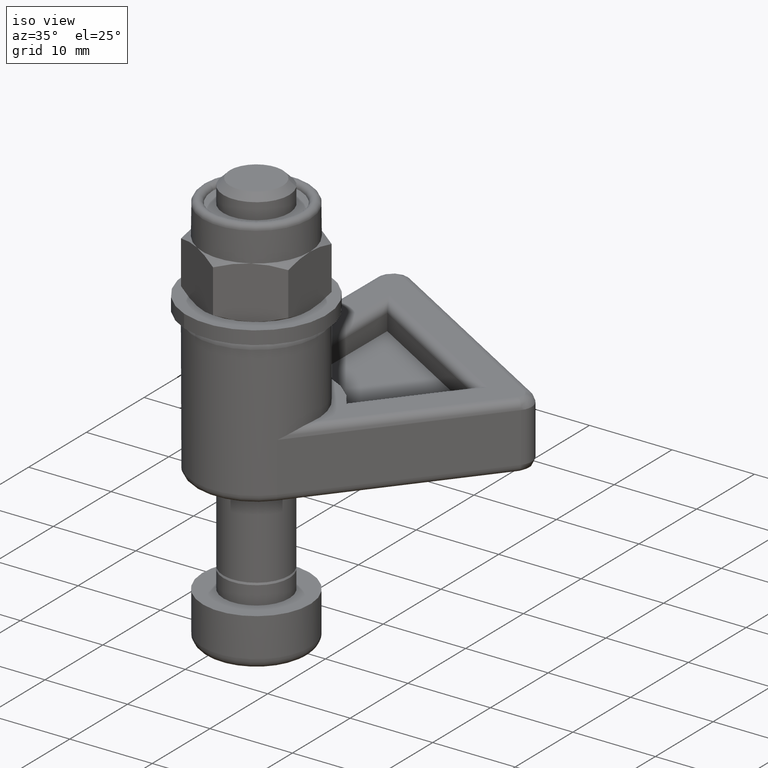
[diagram: clean part render]
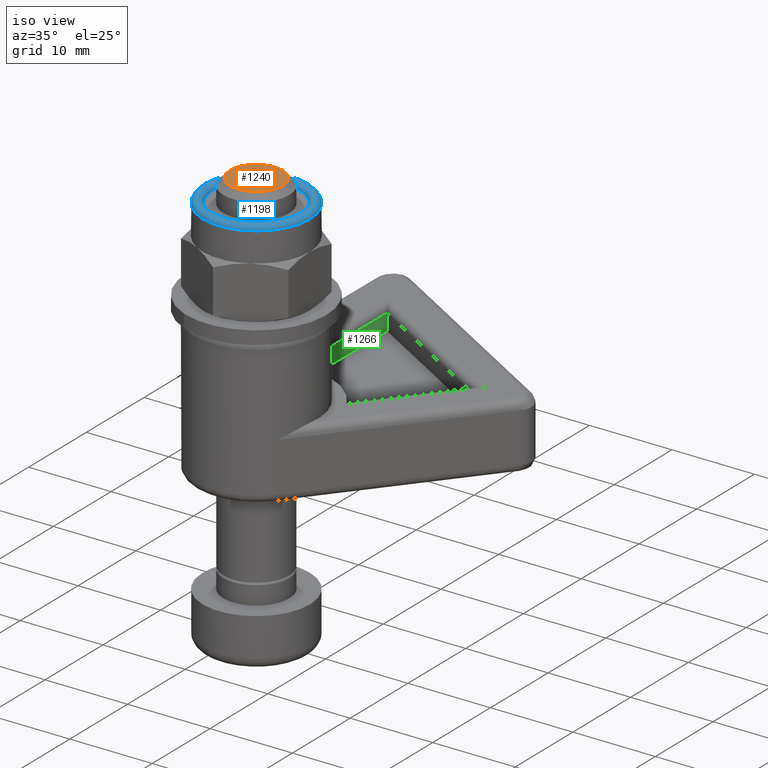
[diagram: same view with three faces highlighted in distinct colors, each labeled with its STEP entity id]
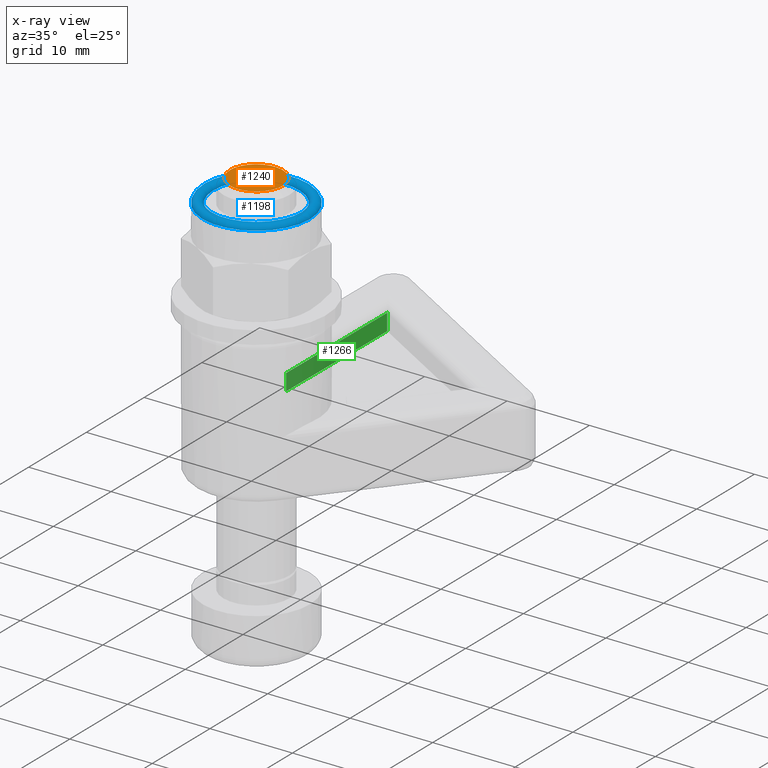
[diagram: x-ray of the same camera — body ghosted, the three highlighted faces saturated]
A machine part, iso view with three faces highlighted in distinct colors.
The next image is the same camera in x-ray (body ghosted, the three faces saturated) — at least one of them is partly hidden behind the body in this view.
Their STEP definitions:

[orange] entity #1240 — the highlighted planar face has unit normal (-0, -0, 1).
#307=FACE_OUTER_BOUND('',#392,.T.);
#392=EDGE_LOOP('',(#1008,#1009));
#471=CIRCLE('',#1489,3.2);
#472=CIRCLE('',#1490,3.2);
#572=VERTEX_POINT('',#2226);
#573=VERTEX_POINT('',#2227);
#722=EDGE_CURVE('',#572,#573,#471,.T.);
#723=EDGE_CURVE('',#573,#572,#472,.T.);
#1008=ORIENTED_EDGE('',*,*,#722,.T.);
#1009=ORIENTED_EDGE('',*,*,#723,.T.);
#1176=PLANE('',#1491);
#1240=ADVANCED_FACE('',(#307),#1176,.T.);
#1489=AXIS2_PLACEMENT_3D('',#2228,#1771,#1772);
#1490=AXIS2_PLACEMENT_3D('',#2229,#1773,#1774);
#1491=AXIS2_PLACEMENT_3D('',#2231,#1776,#1777);
#1771=DIRECTION('center_axis',(1.,1.06036163100756E-33,0.));
#1772=DIRECTION('ref_axis',(0.,1.,0.));
#1773=DIRECTION('center_axis',(1.,1.06036163100756E-33,0.));
#1774=DIRECTION('ref_axis',(0.,1.,0.));
#1776=DIRECTION('center_axis',(1.,1.06036163100756E-33,0.));
#1777=DIRECTION('ref_axis',(0.,0.,-1.));
#2226=CARTESIAN_POINT('',(51.,3.2,0.));
#2227=CARTESIAN_POINT('',(51.,-3.2,-3.91886975727153E-16));
#2228=CARTESIAN_POINT('Origin',(51.,4.93068158418513E-32,0.));
#2229=CARTESIAN_POINT('Origin',(51.,4.93068158418513E-32,0.));
#2231=CARTESIAN_POINT('Origin',(51.,1.6,0.));

[blue] entity #1198 — the highlighted toroidal blend (fillet) surface has major radius 5.875 mm and minor (blend) radius 0.625 mm.
#95=TOROIDAL_SURFACE('',#1407,5.87499999999996,0.625);
#265=FACE_OUTER_BOUND('',#344,.T.);
#344=EDGE_LOOP('',(#808,#809,#810,#811,#812));
#431=CIRCLE('',#1405,5.25);
#432=CIRCLE('',#1406,5.25);
#433=CIRCLE('',#1408,0.625);
#434=CIRCLE('',#1409,6.49999999999996);
#508=VERTEX_POINT('',#1958);
#509=VERTEX_POINT('',#1959);
#510=VERTEX_POINT('',#1963);
#624=EDGE_CURVE('',#508,#509,#431,.T.);
#625=EDGE_CURVE('',#509,#508,#432,.T.);
#626=EDGE_CURVE('',#509,#510,#433,.T.);
#627=EDGE_CURVE('',#510,#510,#434,.T.);
#808=ORIENTED_EDGE('',*,*,#624,.T.);
#809=ORIENTED_EDGE('',*,*,#626,.T.);
#810=ORIENTED_EDGE('',*,*,#627,.T.);
#811=ORIENTED_EDGE('',*,*,#626,.F.);
#812=ORIENTED_EDGE('',*,*,#625,.T.);
#1198=ADVANCED_FACE('',(#265),#95,.T.);
#1405=AXIS2_PLACEMENT_3D('',#1960,#1576,#1577);
#1406=AXIS2_PLACEMENT_3D('',#1961,#1578,#1579);
#1407=AXIS2_PLACEMENT_3D('',#1962,#1580,#1581);
#1408=AXIS2_PLACEMENT_3D('',#1964,#1582,#1583);
#1409=AXIS2_PLACEMENT_3D('',#1965,#1584,#1585);
#1576=DIRECTION('center_axis',(0.,0.,-1.));
#1577=DIRECTION('ref_axis',(-1.,-1.22464679914735E-16,0.));
#1578=DIRECTION('center_axis',(0.,0.,-1.));
#1579=DIRECTION('ref_axis',(-1.,-1.22464679914735E-16,0.));
#1580=DIRECTION('center_axis',(0.,0.,1.));
#1581=DIRECTION('ref_axis',(1.,0.,0.));
#1582=DIRECTION('center_axis',(1.22464679914735E-16,-1.,0.));
#1583=DIRECTION('ref_axis',(-1.,-1.22464679914735E-16,0.));
#1584=DIRECTION('center_axis',(0.,0.,1.));
#1585=DIRECTION('ref_axis',(1.,9.76996261670138E-15,0.));
#1958=CARTESIAN_POINT('',(5.25,0.,9.975));
#1959=CARTESIAN_POINT('',(-5.25,-6.42939569552361E-16,9.975));
#1960=CARTESIAN_POINT('Origin',(0.,0.,9.975));
#1961=CARTESIAN_POINT('Origin',(0.,0.,9.975));
#1962=CARTESIAN_POINT('Origin',(0.,0.,9.975));
#1963=CARTESIAN_POINT('',(-6.49999999999996,-6.43007774280043E-14,9.975));
#1964=CARTESIAN_POINT('Origin',(-5.87499999999996,-7.19479994499065E-16,
9.975));
#1965=CARTESIAN_POINT('Origin',(0.,0.,9.975));

[green] entity #1266 — the highlighted planar face has unit normal (1, -0.006, -0).
#153=LINE('',#2421,#218);
#157=LINE('',#2451,#222);
#158=LINE('',#2453,#223);
#159=LINE('',#2454,#224);
#218=VECTOR('',#1907,10.);
#222=VECTOR('',#1915,10.);
#223=VECTOR('',#1916,10.);
#224=VECTOR('',#1917,10.);
#333=FACE_OUTER_BOUND('',#420,.T.);
#420=EDGE_LOOP('',(#1123,#1124,#1125,#1126));
#608=VERTEX_POINT('',#2412);
#611=VERTEX_POINT('',#2420);
#615=VERTEX_POINT('',#2450);
#616=VERTEX_POINT('',#2452);
#783=EDGE_CURVE('',#608,#611,#153,.T.);
#789=EDGE_CURVE('',#611,#615,#157,.T.);
#790=EDGE_CURVE('',#615,#616,#158,.T.);
#791=EDGE_CURVE('',#616,#608,#159,.T.);
#1123=ORIENTED_EDGE('',*,*,#783,.T.);
#1124=ORIENTED_EDGE('',*,*,#789,.T.);
#1125=ORIENTED_EDGE('',*,*,#790,.T.);
#1126=ORIENTED_EDGE('',*,*,#791,.T.);
#1183=PLANE('',#1545);
#1266=ADVANCED_FACE('',(#333),#1183,.T.);
#1545=AXIS2_PLACEMENT_3D('',#2449,#1913,#1914);
#1907=DIRECTION('',(0.782336613391328,-0.622855860811623,0.));
#1913=DIRECTION('center_axis',(-0.622855860811623,-0.782336613391328,0.));
#1914=DIRECTION('ref_axis',(-0.782336613391328,0.622855860811623,0.));
#1915=DIRECTION('',(0.,0.,1.));
#1916=DIRECTION('',(-0.782336613391328,0.622855860811623,0.));
#1917=DIRECTION('',(0.,0.,-1.));
#2412=CARTESIAN_POINT('',(-18.7848027497996,18.1510416920753,-7.));
#2420=CARTESIAN_POINT('',(-5.20679268092511,7.34093386279053,-7.));
#2421=CARTESIAN_POINT('',(1.55713975771336,1.95584144933796,-7.));
#2449=CARTESIAN_POINT('Origin',(1.55713965202908,1.95584153347831,0.));
#2450=CARTESIAN_POINT('',(-5.20679268092511,7.34093386279053,-5.));
#2451=CARTESIAN_POINT('',(-5.20679268092511,7.34093386279053,0.));
#2452=CARTESIAN_POINT('',(-18.7848027497996,18.1510416920753,-5.));
#2453=CARTESIAN_POINT('',(1.55713975771336,1.95584144933796,-5.));
#2454=CARTESIAN_POINT('',(-18.7848027497996,18.1510416920753,0.));